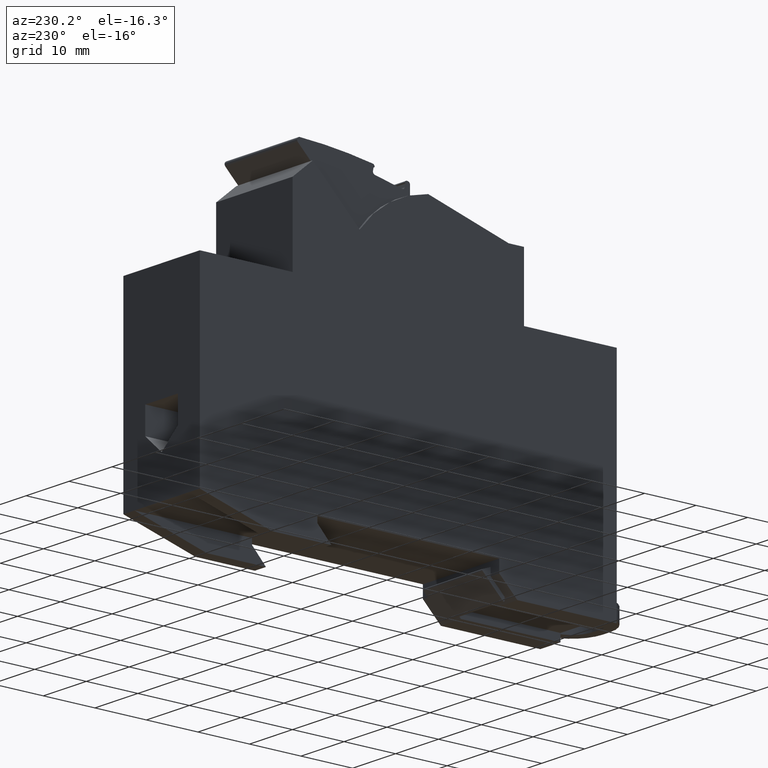
[diagram: clean part render]
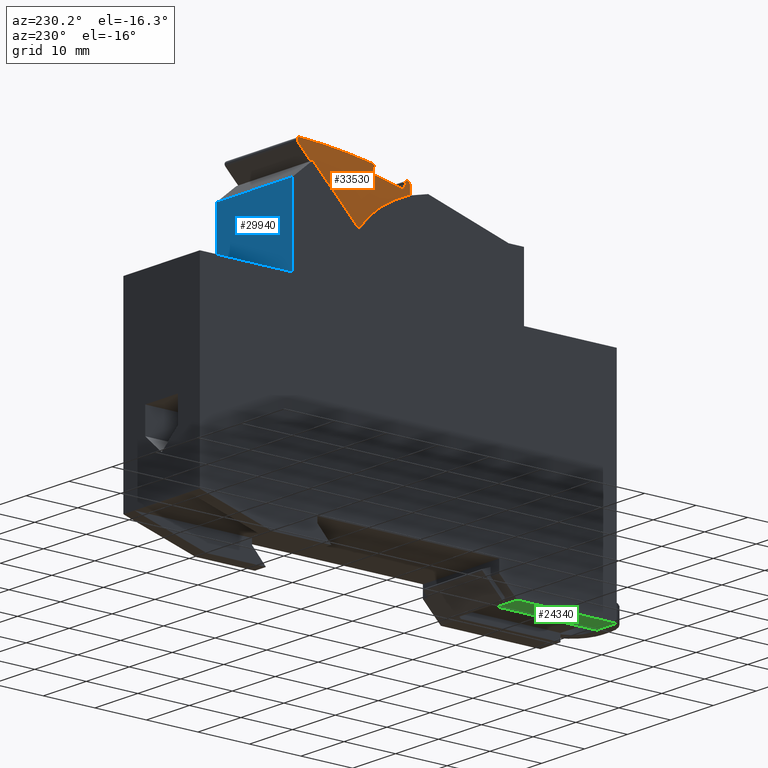
[diagram: same view with three faces highlighted in distinct colors, each labeled with its STEP entity id]
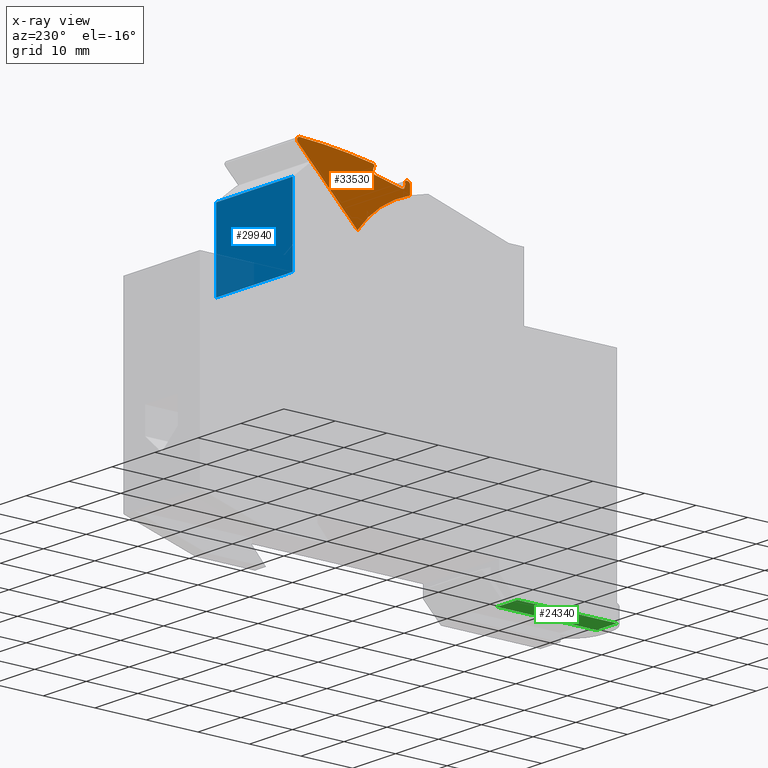
[diagram: x-ray of the same camera — body ghosted, the three highlighted faces saturated]
A machine part, auxiliary view with three faces highlighted in distinct colors.
The next image is the same camera in x-ray (body ghosted, the three faces saturated) — at least one of them is partly hidden behind the body in this view.
Their STEP definitions:

[orange] entity #33530 — the highlighted planar face has unit normal (1, 0, 0).
#11210=CARTESIAN_POINT('',(-26.7952979869077,-115.866101013092,
-0.499999999999996));
#11220=VERTEX_POINT('',#11210);
#11250=CARTESIAN_POINT('',(-142.661399,0.,-0.499999999999996));
#11260=DIRECTION('',(-0.707106781186548,0.707106781186548,0.));
#11270=VECTOR('',#11260,1.);
#11280=LINE('',#11250,#11270);
#11290=CARTESIAN_POINT('',(-29.2795777272727,-113.381821272727,
-0.499999999999996));
#11300=VERTEX_POINT('',#11290);
#11310=EDGE_CURVE('',#11220,#11300,#11280,.T.);
#30380=CARTESIAN_POINT('',(-48.552305,-111.620830807894,
-0.499999999999996));
#30390=VERTEX_POINT('',#30380);
#30540=CARTESIAN_POINT('',(-38.352305,-104.309094,-0.499999999999996));
#30550=VERTEX_POINT('',#30540);
#30580=CARTESIAN_POINT('',(-54.5161453406398,-92.5307127257202,
-0.499999999999996));
#30590=DIRECTION('',(0.,0.,-1.));
#30600=DIRECTION('',(1.,0.,0.));
#30610=AXIS2_PLACEMENT_3D('',#30580,#30590,#30600);
#30620=CIRCLE('',#30610,20.);
#30630=EDGE_CURVE('',#30550,#30390,#30620,.T.);
#31410=CARTESIAN_POINT('',(-142.661399,0.,-0.499999999999996));
#31420=DIRECTION('',(-0.707106781186548,0.707106781186548,0.));
#31430=VECTOR('',#31420,1.);
#31440=LINE('',#31410,#31430);
#31450=EDGE_CURVE('',#11300,#30550,#31440,.T.);
#32070=CARTESIAN_POINT('',(-78.174493,-89.306147,-0.499999999999996));
#32080=DIRECTION('',(0.,0.,-1.));
#32090=DIRECTION('',(1.,0.,0.));
#32100=AXIS2_PLACEMENT_3D('',#32070,#32080,#32090);
#32110=PLANE('',#32100);
#32120=ORIENTED_EDGE('',*,*,#30630,.T.);
#32130=ORIENTED_EDGE('',*,*,#31450,.T.);
#32140=ORIENTED_EDGE('',*,*,#11310,.T.);
#32150=CARTESIAN_POINT('',(-27.148851377501,-116.219654403686,
-0.499999999999996));
#32160=DIRECTION('',(0.,0.,-1.));
#32170=DIRECTION('',(1.,0.,0.));
#32180=AXIS2_PLACEMENT_3D('',#32150,#32160,#32170);
#32190=CIRCLE('',#32180,0.5);
#32200=CARTESIAN_POINT('',(-27.1651886451824,-116.719387426093,
-0.499999999999996));
#32210=VERTEX_POINT('',#32200);
#32220=EDGE_CURVE('',#11220,#32210,#32190,.T.);
#32230=ORIENTED_EDGE('',*,*,#32220,.F.);
#32240=CARTESIAN_POINT('',(-23.8977351089165,-16.7727829445584,
-0.499999999999996));
#32250=DIRECTION('',(0.,0.,-1.));
#32260=DIRECTION('',(1.,0.,0.));
#32270=AXIS2_PLACEMENT_3D('',#32240,#32250,#32260);
#32280=CIRCLE('',#32270,100.);
#32290=CARTESIAN_POINT('',(-41.3966578846399,-115.229817744969,
-0.499999999999996));
#32300=VERTEX_POINT('',#32290);
#32310=EDGE_CURVE('',#32210,#32300,#32280,.T.);
#32320=ORIENTED_EDGE('',*,*,#32310,.F.);
#32330=CARTESIAN_POINT('',(-41.2761617326345,-114.848398451606,
-0.499999999999996));
#32340=DIRECTION('',(0.,0.,1.));
#32350=DIRECTION('',(0.0447395374250884,0.998998685580211,0.));
#32360=AXIS2_PLACEMENT_3D('',#32330,#32340,#32350);
#32370=CIRCLE('',#32360,0.4);
#32380=CARTESIAN_POINT('',(-41.6577831390421,-114.968252955782,
-0.499999999999996));
#32390=VERTEX_POINT('',#32380);
#32400=EDGE_CURVE('',#32390,#32300,#32370,.T.);
#32410=ORIENTED_EDGE('',*,*,#32400,.T.);
#32420=CARTESIAN_POINT('',(-49.7173912580212,-89.306147,
-0.499999999999996));
#32430=DIRECTION('',(0.299636260441673,-0.954053516019165,0.));
#32440=VECTOR('',#32430,1.);
#32450=LINE('',#32420,#32440);
#32460=CARTESIAN_POINT('',(-41.6802450952881,-114.896733212806,
-0.499999999999996));
#32470=VERTEX_POINT('',#32460);
#32480=EDGE_CURVE('',#32470,#32390,#32450,.T.);
#32490=ORIENTED_EDGE('',*,*,#32480,.T.);
#32500=CARTESIAN_POINT('',(-41.537137067886,-114.85178777374,
-0.499999999999996));
#32510=DIRECTION('',(0.,0.,-1.));
#32520=DIRECTION('',(0.0424991824677273,-0.999096501590099,0.));
#32530=AXIS2_PLACEMENT_3D('',#32500,#32510,#32520);
#32540=CIRCLE('',#32530,0.149999999999663);
#32550=CARTESIAN_POINT('',(-41.4924197837244,-114.708608290234,
-0.499999999999996));
#32560=VERTEX_POINT('',#32550);
#32570=EDGE_CURVE('',#32470,#32560,#32540,.T.);
#32580=ORIENTED_EDGE('',*,*,#32570,.F.);
#32590=CARTESIAN_POINT('',(-35.8309400085367,-89.306147,
-0.499999999999996));
#32600=DIRECTION('',(-0.217534144564675,-0.976052711664957,0.));
#32610=VECTOR('',#32600,1.);
#32620=LINE('',#32590,#32610);
#32630=CARTESIAN_POINT('',(-41.3683118249032,-114.151748998148,
-0.499999999999996));
#32640=VERTEX_POINT('',#32630);
#32650=EDGE_CURVE('',#32640,#32560,#32620,.T.);
#32660=ORIENTED_EDGE('',*,*,#32650,.T.);
#32670=CARTESIAN_POINT('',(-41.8563381807353,-114.042981925866,
-0.499999999999996));
#32680=DIRECTION('',(0.,0.,1.));
#32690=DIRECTION('',(-0.16394163465341,0.986470040308963,0.));
#32700=AXIS2_PLACEMENT_3D('',#32670,#32680,#32690);
#32710=CIRCLE('',#32700,0.499999999999825);
#32720=CARTESIAN_POINT('',(-41.7475711084529,-113.554955570034,
-0.499999999999996));
#32730=VERTEX_POINT('',#32720);
#32740=EDGE_CURVE('',#32640,#32730,#32710,.T.);
#32750=ORIENTED_EDGE('',*,*,#32740,.F.);
#32760=CARTESIAN_POINT('',(-78.174493,-105.436439840174,
-0.499999999999996));
#32770=DIRECTION('',(0.976052711664827,-0.217534144565255,0.));
#32780=VECTOR('',#32770,1.);
#32790=LINE('',#32760,#32780);
#32800=CARTESIAN_POINT('',(-46.9450517980683,-112.396586250224,
-0.499999999999996));
#32810=VERTEX_POINT('',#32800);
#32820=EDGE_CURVE('',#32810,#32730,#32790,.T.);
#32830=ORIENTED_EDGE('',*,*,#32820,.T.);
#32840=CARTESIAN_POINT('',(-47.053818870351,-112.884612606057,
-0.499999999999996));
#32850=DIRECTION('',(0.,0.,-1.));
#32860=DIRECTION('',(0.299636260448568,-0.954053516016999,0.));
#32870=AXIS2_PLACEMENT_3D('',#32840,#32850,#32860);
#32880=CIRCLE('',#32870,0.499999999999787);
#32890=CARTESIAN_POINT('',(-47.5418452261833,-112.775845533775,
-0.499999999999996));
#32900=VERTEX_POINT('',#32890);
#32910=EDGE_CURVE('',#32900,#32810,#32880,.T.);
#32920=ORIENTED_EDGE('',*,*,#32910,.T.);
#32930=CARTESIAN_POINT('',(-42.3111228146517,-89.306147,
-0.499999999999996));
#32940=DIRECTION('',(0.217534144564941,0.976052711664897,0.));
#32950=VECTOR('',#32940,1.);
#32960=LINE('',#32930,#32950);
#32970=CARTESIAN_POINT('',(-47.6659531850046,-113.332704825859,
-0.499999999999996));
#32980=VERTEX_POINT('',#32970);
#32990=EDGE_CURVE('',#32980,#32900,#32960,.T.);
#33000=ORIENTED_EDGE('',*,*,#32990,.T.);
#33010=CARTESIAN_POINT('',(-47.6862691513742,-113.48132266298,
-0.499999999999996));
#33020=DIRECTION('',(0.,0.,-1.));
#33030=DIRECTION('',(0.299636260448568,-0.954053516016999,0.));
#33040=AXIS2_PLACEMENT_3D('',#33010,#33020,#33030);
#33050=CIRCLE('',#33040,0.149999999999967);
#33060=CARTESIAN_POINT('',(-47.5757912456564,-113.582785130662,
-0.499999999999996));
#33070=VERTEX_POINT('',#33060);
#33080=EDGE_CURVE('',#32980,#33070,#33050,.T.);
#33090=ORIENTED_EDGE('',*,*,#33080,.F.);
#33100=CARTESIAN_POINT('',(-25.2802236770954,-89.306147,
-0.499999999999996));
#33110=DIRECTION('',(0.676416451215306,0.736519371452843,0.));
#33120=VECTOR('',#33110,1.);
#33130=LINE('',#33100,#33120);
#33140=CARTESIAN_POINT('',(-47.6748975738955,-113.690697542388,
-0.499999999999996));
#33150=VERTEX_POINT('',#33140);
#33160=EDGE_CURVE('',#33150,#33070,#33130,.T.);
#33170=ORIENTED_EDGE('',*,*,#33160,.T.);
#33180=CARTESIAN_POINT('',(-47.9695053224766,-113.420130961902,
-0.499999999999996));
#33190=DIRECTION('',(0.,0.,-1.));
#33200=DIRECTION('',(1.,0.,0.));
#33210=AXIS2_PLACEMENT_3D('',#33180,#33190,#33200);
#33220=CIRCLE('',#33210,0.4);
#33230=CARTESIAN_POINT('',(-48.0661790984347,-113.808272921811,
-0.499999999999996));
#33240=VERTEX_POINT('',#33230);
#33250=EDGE_CURVE('',#33150,#33240,#33220,.T.);
#33260=ORIENTED_EDGE('',*,*,#33250,.F.);
#33270=CARTESIAN_POINT('',(-23.8977351089165,-16.7727829445584,
-0.499999999999996));
#33280=DIRECTION('',(0.,0.,-1.));
#33290=DIRECTION('',(1.,0.,0.));
#33300=AXIS2_PLACEMENT_3D('',#33270,#33280,#33290);
#33310=CIRCLE('',#33300,100.);
#33320=CARTESIAN_POINT('',(-48.1736847481964,-113.781433430539,
-0.499999999999996));
#33330=VERTEX_POINT('',#33320);
#33340=EDGE_CURVE('',#33240,#33330,#33310,.T.);
#33350=ORIENTED_EDGE('',*,*,#33340,.F.);
#33360=CARTESIAN_POINT('',(-48.052305,-113.296390178109,
-0.499999999999996));
#33370=DIRECTION('',(0.,0.,-1.));
#33380=DIRECTION('',(1.,0.,0.));
#33390=AXIS2_PLACEMENT_3D('',#33360,#33370,#33380);
#33400=CIRCLE('',#33390,0.5);
#33410=CARTESIAN_POINT('',(-48.552305,-113.296390178109,
-0.499999999999996));
#33420=VERTEX_POINT('',#33410);
#33430=EDGE_CURVE('',#33330,#33420,#33400,.T.);
#33440=ORIENTED_EDGE('',*,*,#33430,.F.);
#33450=CARTESIAN_POINT('',(-48.552305,0.,-0.499999999999996));
#33460=DIRECTION('',(0.,-1.,0.));
#33470=VECTOR('',#33460,1.);
#33480=LINE('',#33450,#33470);
#33490=EDGE_CURVE('',#30390,#33420,#33480,.T.);
#33500=ORIENTED_EDGE('',*,*,#33490,.T.);
#33510=EDGE_LOOP('',(#33500,#33440,#33350,#33260,#33170,#33090,#33000,
#32920,#32830,#32750,#32660,#32580,#32490,#32410,#32320,#32230,#32140,
#32130,#32120));
#33520=FACE_OUTER_BOUND('',#33510,.T.);
#33530=ADVANCED_FACE('',(#33520),#32110,.F.);

[blue] entity #29940 — the highlighted planar face has unit normal (0, -1, 0).
#850=CARTESIAN_POINT('',(-25.352305,-110.109094,-17.8));
#860=VERTEX_POINT('',#850);
#890=CARTESIAN_POINT('',(-25.352305,-95.309094,-17.8));
#900=DIRECTION('',(0.,-1.,0.));
#910=VECTOR('',#900,1.);
#920=LINE('',#890,#910);
#930=CARTESIAN_POINT('',(-25.352305,-95.309094,-17.8));
#940=VERTEX_POINT('',#930);
#950=EDGE_CURVE('',#940,#860,#920,.T.);
#2280=CARTESIAN_POINT('',(-25.352305,-95.309094,0.));
#2290=VERTEX_POINT('',#2280);
#2320=CARTESIAN_POINT('',(-25.352305,-95.309094,0.));
#2330=DIRECTION('',(0.,-1.,0.));
#2340=VECTOR('',#2330,1.);
#2350=LINE('',#2320,#2340);
#2360=CARTESIAN_POINT('',(-25.352305,-110.109094,0.));
#2370=VERTEX_POINT('',#2360);
#2380=EDGE_CURVE('',#2290,#2370,#2350,.T.);
#24630=CARTESIAN_POINT('',(-25.352305,-95.309094,-17.8));
#24640=DIRECTION('',(0.,0.,-1.));
#24650=VECTOR('',#24640,1.);
#24660=LINE('',#24630,#24650);
#24670=EDGE_CURVE('',#2290,#940,#24660,.T.);
#29780=CARTESIAN_POINT('',(-25.352305,-95.309094,0.));
#29790=DIRECTION('',(-1.,0.,0.));
#29800=DIRECTION('',(0.,-1.,0.));
#29810=AXIS2_PLACEMENT_3D('',#29780,#29790,#29800);
#29820=PLANE('',#29810);
#29830=ORIENTED_EDGE('',*,*,#2380,.T.);
#29840=ORIENTED_EDGE('',*,*,#24670,.F.);
#29850=ORIENTED_EDGE('',*,*,#950,.F.);
#29860=CARTESIAN_POINT('',(-25.352305,-110.109094,-16.4));
#29870=DIRECTION('',(0.,0.,1.));
#29880=VECTOR('',#29870,1.);
#29890=LINE('',#29860,#29880);
#29900=EDGE_CURVE('',#860,#2370,#29890,.T.);
#29910=ORIENTED_EDGE('',*,*,#29900,.F.);
#29920=EDGE_LOOP('',(#29910,#29850,#29840,#29830));
#29930=FACE_OUTER_BOUND('',#29920,.T.);
#29940=ADVANCED_FACE('',(#29930),#29820,.F.);

[green] entity #24340 — the highlighted planar face has unit normal (0, -0, 1).
#3010=CARTESIAN_POINT('',(-88.252305,-52.509094,1.54581919676501E-14));
#3020=VERTEX_POINT('',#3010);
#3050=CARTESIAN_POINT('',(0.,-52.509094,-1.31620218772108E-14));
#3060=DIRECTION('',(-1.,0.,3.24299901797023E-16));
#3070=VECTOR('',#3060,1.);
#3080=LINE('',#3050,#3070);
#3090=CARTESIAN_POINT('',(-68.952305,-52.509094,1.28616848114412E-14));
#3100=VERTEX_POINT('',#3090);
#3110=EDGE_CURVE('',#3100,#3020,#3080,.T.);
#12140=CARTESIAN_POINT('',(-88.252305,-52.509094,-4.7));
#12150=VERTEX_POINT('',#12140);
#12180=CARTESIAN_POINT('',(-88.252305,-52.509094,0.));
#12190=DIRECTION('',(0.,-1.7604581892217E-16,-1.));
#12200=VECTOR('',#12190,1.);
#12210=LINE('',#12180,#12200);
#12220=EDGE_CURVE('',#3020,#12150,#12210,.T.);
#21310=CARTESIAN_POINT('',(-68.952305,-52.509094,-4.7));
#21320=VERTEX_POINT('',#21310);
#21350=CARTESIAN_POINT('',(0.,-52.509094,-4.7));
#21360=DIRECTION('',(-1.,0.,0.));
#21370=VECTOR('',#21360,1.);
#21380=LINE('',#21350,#21370);
#21390=EDGE_CURVE('',#21320,#12150,#21380,.T.);
#21580=CARTESIAN_POINT('',(-68.952305,-52.509094,0.));
#21590=DIRECTION('',(-5.00345720719192E-16,0.,-1.));
#21600=VECTOR('',#21590,1.);
#21610=LINE('',#21580,#21600);
#21620=EDGE_CURVE('',#3100,#21320,#21610,.T.);
#24230=CARTESIAN_POINT('',(-88.252305,-52.509094,0.));
#24240=DIRECTION('',(-0.,-1.,-0.));
#24250=DIRECTION('',(-1.,0.,0.));
#24260=AXIS2_PLACEMENT_3D('',#24230,#24240,#24250);
#24270=PLANE('',#24260);
#24280=ORIENTED_EDGE('',*,*,#3110,.F.);
#24290=ORIENTED_EDGE('',*,*,#12220,.F.);
#24300=ORIENTED_EDGE('',*,*,#21390,.T.);
#24310=ORIENTED_EDGE('',*,*,#21620,.T.);
#24320=EDGE_LOOP('',(#24310,#24300,#24290,#24280));
#24330=FACE_OUTER_BOUND('',#24320,.T.);
#24340=ADVANCED_FACE('',(#24330),#24270,.F.);